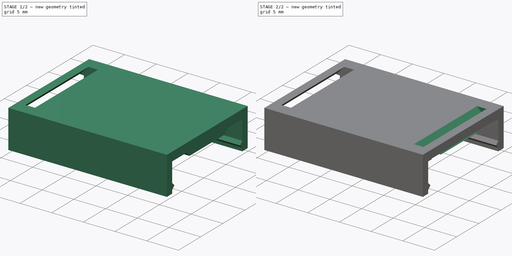
[diagram: build sequence overview — one tinted view per stage of 2, left to right]
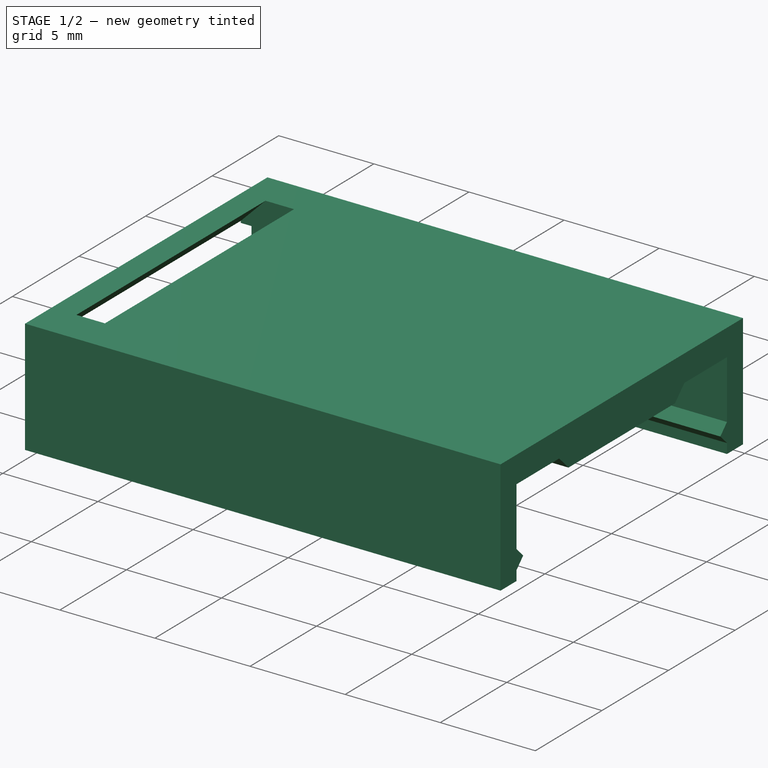
[diagram: stage 1 of 2 — iso view after this stage's code; geometry added in this stage tinted green]
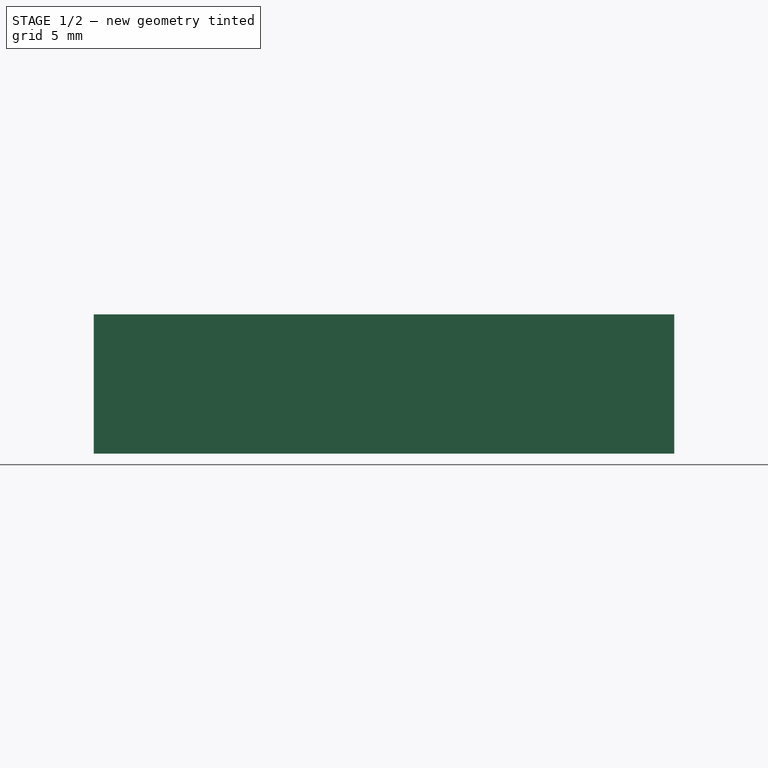
[diagram: stage 1 of 2 — front view after this stage's code; geometry added in this stage tinted green]
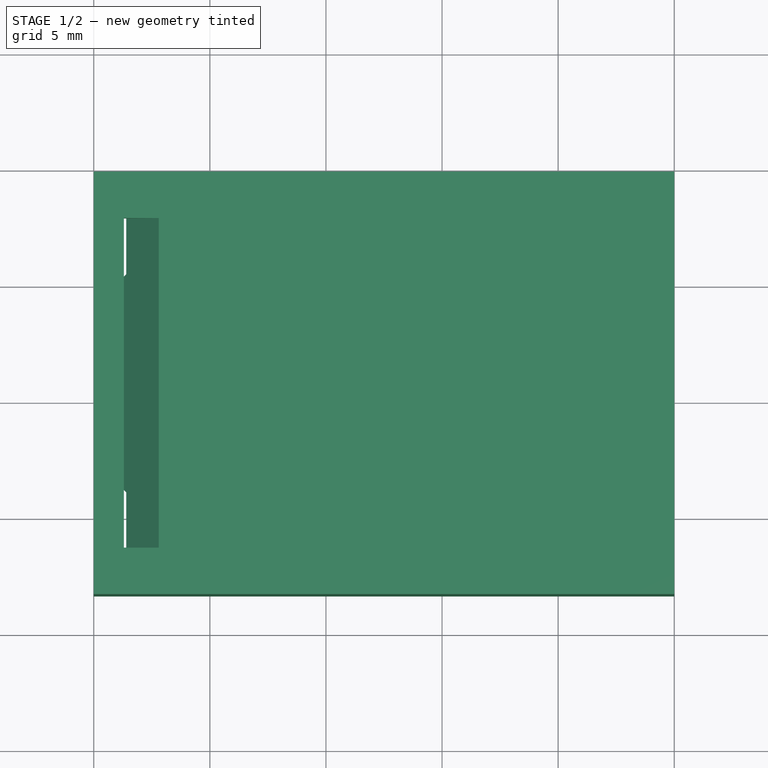
[diagram: stage 1 of 2 — top view after this stage's code; geometry added in this stage tinted green]
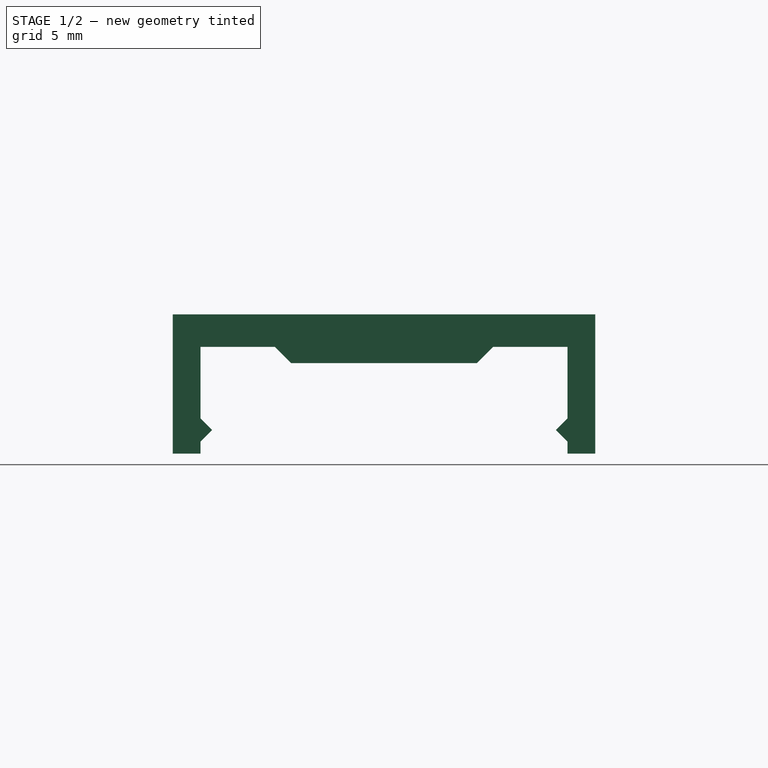
[diagram: stage 1 of 2 — right view after this stage's code; geometry added in this stage tinted green]
FCSTD DOCUMENT  (FreeCAD 1.0R39109 (Git))
Label: Menlu_peel-cap_12mm
License: All rights reserved
LicenseURL: https://en.wikipedia.org/wiki/All_rights_reserved
objects: Sketcher::SketchObject×3, PartDesign::Pocket×2, PartDesign::Pad×1, PartDesign::Body×1
note: 16 computed .brp shape members not serialized (recipe doc carries the construction recipe); baked Part::Feature solids carry a one-line shape summary decoded from their .brp

FEATURE [Sketcher::SketchObject] Sketch
  ArcFitTolerance = 1e-06
  AttachmentSupport = -> [YZ_Plane]
  FullyConstrained = true
  MakeInternals = false
  MapMode = 5
  Placement = pos=(0,0,0) rot=(0.57735,0.57735,0.57735;2.0944rad)
  expr: Constraints[29] = .Constraints.cap_height
  expr: Constraints[31] = .Constraints.wall_width
  expr: Constraints[33] = .Constraints.point_len
  expr: Constraints[34] = .Constraints.point_len
  expr: Constraints[35] = .Constraints.point_len
  expr: Constraints[39] = .Constraints.point_len
  expr: Constraints[40] = .Constraints.point_len
  expr: Constraints[46] = .Constraints.top_gap
  expr: Constraints[48] = .Constraints.pusher_slope
  expr: Constraints[49] = .Constraints.pusher_slope
  sketch-geometry (18):
    g0: LineSegment StartX=1.67112 StartY=4.43155 StartZ=0 EndX=1.67112 EndY=10.4316 EndZ=0
    g1: LineSegment StartX=1.67112 StartY=10.4316 StartZ=0 EndX=19.8711 EndY=10.4316 EndZ=0
    g2: LineSegment StartX=19.8711 StartY=10.4316 StartZ=0 EndX=19.8711 EndY=4.43155 EndZ=0
    g3: LineSegment StartX=19.8711 StartY=4.43155 StartZ=0 EndX=18.6711 EndY=4.43155 EndZ=0
    g4: LineSegment StartX=18.6711 StartY=4.43155 StartZ=0 EndX=18.6711 EndY=4.95155 EndZ=0
    g5: LineSegment StartX=18.6711 StartY=4.95155 StartZ=0 EndX=18.1711 EndY=5.45155 EndZ=0
    g6: LineSegment StartX=18.1711 StartY=5.45155 StartZ=0 EndX=18.6711 EndY=5.95155 EndZ=0
    g7: LineSegment StartX=18.6711 StartY=5.95155 StartZ=0 EndX=18.6711 EndY=9.03155 EndZ=0
    g8: LineSegment StartX=18.6711 StartY=9.03155 StartZ=0 EndX=15.4711 EndY=9.03155 EndZ=0
    g9: LineSegment StartX=15.4711 StartY=9.03155 StartZ=0 EndX=14.7711 EndY=8.33155 EndZ=0
    g10: LineSegment StartX=14.7711 StartY=8.33155 StartZ=0 EndX=6.77112 EndY=8.33155 EndZ=0
    g11: LineSegment StartX=6.77112 StartY=8.33155 StartZ=0 EndX=6.07112 EndY=9.03155 EndZ=0
    g12: LineSegment StartX=6.07112 StartY=9.03155 StartZ=0 EndX=2.87112 EndY=9.03155 EndZ=0
    g13: LineSegment StartX=2.87112 StartY=9.03155 StartZ=0 EndX=2.87112 EndY=5.95155 EndZ=0
    g14: LineSegment StartX=2.87112 StartY=5.95155 StartZ=0 EndX=3.37112 EndY=5.45155 EndZ=0
    g15: LineSegment StartX=3.37112 StartY=5.45155 StartZ=0 EndX=2.87112 EndY=4.95155 EndZ=0
    g16: LineSegment StartX=2.87112 StartY=4.95155 StartZ=0 EndX=2.87112 EndY=4.43155 EndZ=0
    g17: LineSegment StartX=2.87112 StartY=4.43155 StartZ=0 EndX=1.67112 EndY=4.43155 EndZ=0
  constraints (51):
    c: Vertical(g0)
    c: Coincident(g0,g1)
    c: Horizontal(g1)
    c: Coincident(g1,g2)
    c: Vertical(g2)
    c: Coincident(g2,g3)
    c: Horizontal(g3)
    c: Coincident(g3,g4)
    c: Vertical(g4)
    c: Coincident(g4,g5)
    c: Coincident(g5,g6)
    c: Coincident(g6,g7)
    c: Coincident(g7,g8)
    c: Horizontal(g8)
    c: Coincident(g8,g9)
    c: Coincident(g9,g10)
    c: Horizontal(g10)
    c: Coincident(g10,g11)
    c: Coincident(g11,g12)
    c: Coincident(g12,g13)
    c: Vertical(g13)
    c: Coincident(g13,g14)
    c: Coincident(g14,g15)
    c: Coincident(g15,g16)
    c: Coincident(g16,g17)
    c: Coincident(g17,g0)
    c: DistanceY(g0,g0) = 6  'cap_height'
    c: Horizontal(g17)
    c: DistanceX(g1,g1) = 18.2
    c: DistanceY(g2,g2) = 6
    c: DistanceX(g17,g17) = 1.2  'wall_width'
    c: DistanceX(g3,g3) = 1.2
    c: DistanceX(g15,g14) = 0.5  'point_len'
    c: DistanceY(g15,g14) = 0.5
    c: DistanceX(g5,g4) = 0.5
    c: DistanceY(g4,g5) = 0.5
    c: Tangent(g16,g13)
    c: Tangent(g4,g7)
    c: Tangent(g8,g12)
    c: DistanceY(g14,g13) = 0.5
    c: DistanceY(g5,g6) = 0.5
    c: Distance(g14,g12) = 3.58  'point_distance'
    c: Horizontal(g14,g5)
    c: Distance(g1,g12) = 1.4
    c: Block(g0)
    c: DistanceX(g12,g12) = 3.2  'top_gap'
    c: DistanceX(g8,g8) = 3.2
    c: DistanceX(g11,g10) = 0.7  'pusher_slope'
    c: DistanceY(g10,g11) = 0.7
    c: DistanceX(g9,g8) = 0.7
    c: DistanceY(g16,g14) = 1.02
FEATURE [PartDesign::Pad] Pad
  Direction = (1,0,0)
  Length = 25
  Length2 = 10
  Placement = pos=(0,0,0) rot=(1,1,1;2.0944rad)
  Profile = -> Sketch
  ReferenceAxis = -> Sketch [N_Axis]
  Refine = true
  Suppressed = false
  Type = 0
FEATURE [Sketcher::SketchObject] Sketch001
  ArcFitTolerance = 1e-06
  AttachmentSupport = -> [Pad]
  ExternalGeometry = -> [Pad]
  FullyConstrained = true
  MakeInternals = false
  MapMode = 5
  Placement = pos=(-1.2e-15,3.5e-15,10.4316) rot=(0,0,-1;1.5708rad)
  expr: Constraints[9] = .Constraints.edge_y_dist
  sketch-geometry (4):
    g0: LineSegment StartX=-17.8711 StartY=2.8 StartZ=0 EndX=-17.8711 EndY=1.3 EndZ=0
    g1: LineSegment StartX=-17.8711 StartY=1.3 StartZ=0 EndX=-3.67112 EndY=1.3 EndZ=0
    g2: LineSegment StartX=-3.67112 StartY=1.3 StartZ=0 EndX=-3.67112 EndY=2.8 EndZ=0
    g3: LineSegment StartX=-3.67112 StartY=2.8 StartZ=0 EndX=-17.8711 EndY=2.8 EndZ=0
  constraints (12):
    c: Coincident(g0,g1)
    c: Coincident(g1,g2)
    c: Coincident(g2,g3)
    c: Coincident(g3,g0)
    c: Vertical(g0)
    c: Vertical(g2)
    c: Horizontal(g1)
    c: Horizontal(g3)
    c: DistanceX(g-4,g0) = 2  'edge_y_dist'
    c: DistanceX(g1,g-4) = 2
    c: Distance(g-4,g1) = 1.3  'edge_x_dist'
    c: Distance(g0,g0) = 1.5  'hole_width'
FEATURE [PartDesign::Pocket] Pocket
  BaseFeature = -> Pad
  Direction = (-1,0,-1)
  Length = 5
  Length2 = 5
  Placement = pos=(0,0,0) rot=(1,1,1;2.0944rad)
  Profile = -> Sketch001
  ReferenceAxis = -> Sketch001 [N_Axis]
  Refine = true
  Suppressed = false
  Type = 0
  UseCustomVector = true
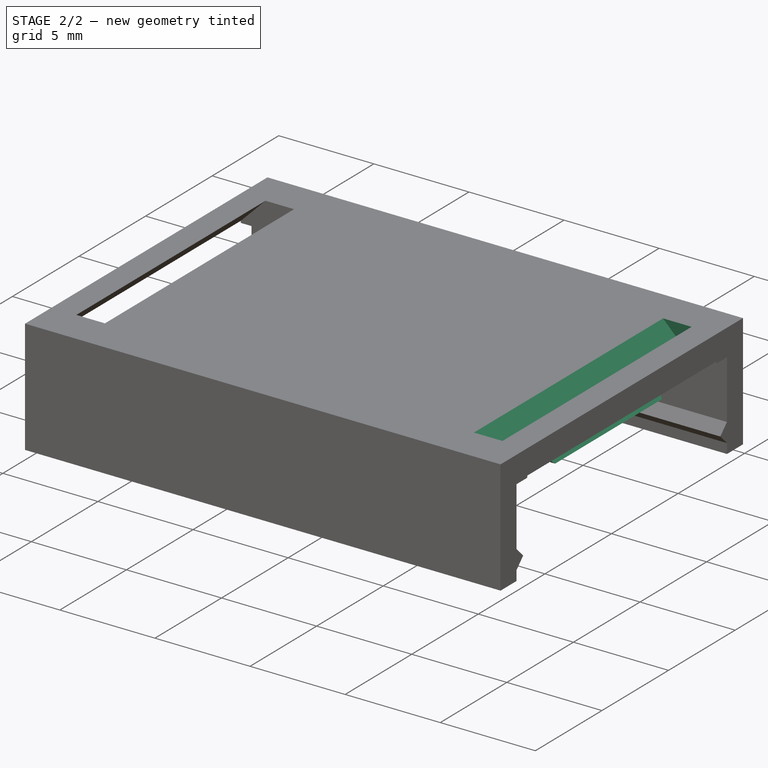
[diagram: stage 2 of 2 — iso view after this stage's code; geometry added in this stage tinted green]
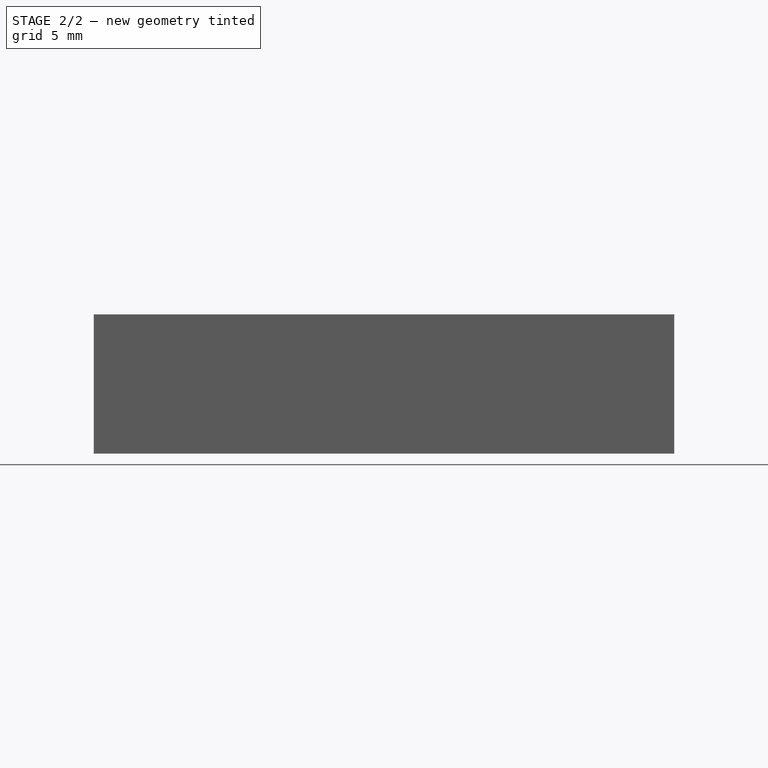
[diagram: stage 2 of 2 — front view after this stage's code; geometry added in this stage tinted green]
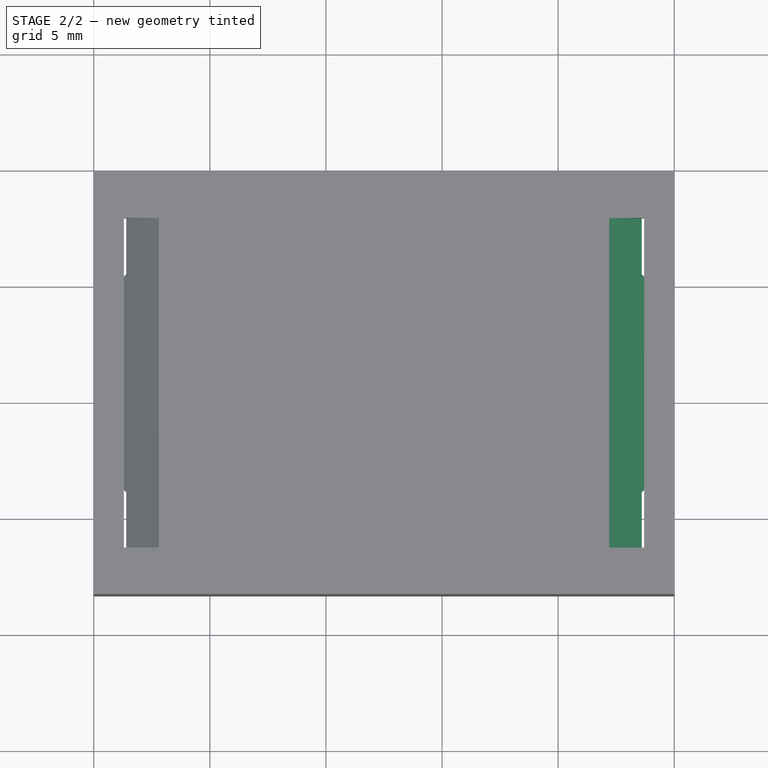
[diagram: stage 2 of 2 — top view after this stage's code; geometry added in this stage tinted green]
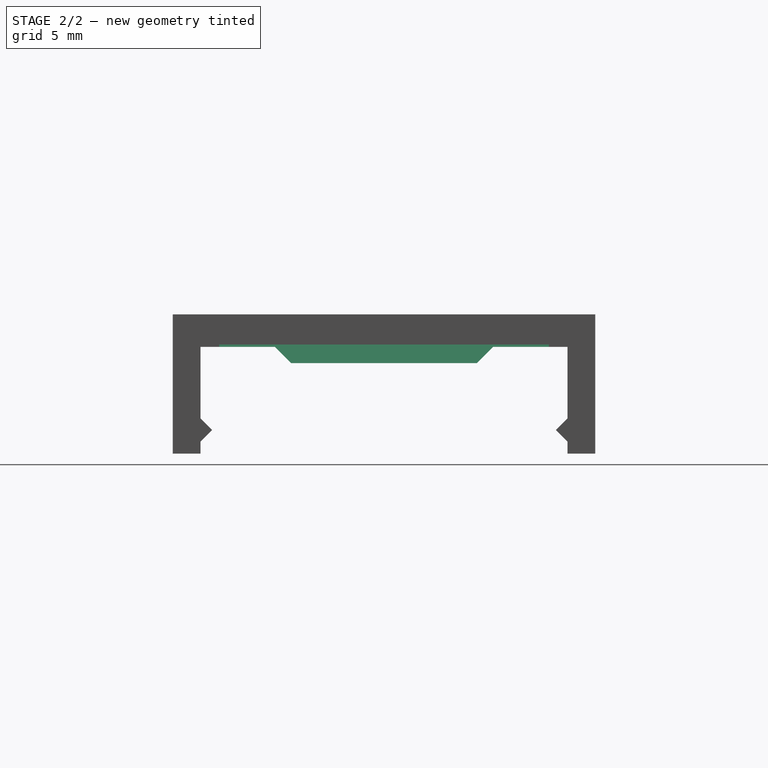
[diagram: stage 2 of 2 — right view after this stage's code; geometry added in this stage tinted green]
FEATURE [Sketcher::SketchObject] Sketch002
  ArcFitTolerance = 1e-06
  AttachmentSupport = -> [Pocket]
  ExternalGeometry = -> [Pocket]
  FullyConstrained = true
  MakeInternals = false
  MapMode = 5
  Placement = pos=(-4.6e-15,4.6e-15,10.4316) rot=(0,0,-1;1.5708rad)
  expr: Constraints[10] = <<Sketch001>>.Constraints.edge_x_dist
  expr: Constraints[11] = <<Sketch001>>.Constraints.hole_width
  expr: Constraints[8] = <<Sketch001>>.Constraints.edge_y_dist
  expr: Constraints[9] = <<Sketch001>>.Constraints.edge_y_dist
  sketch-geometry (4):
    g0: LineSegment StartX=-17.8711 StartY=23.7 StartZ=0 EndX=-17.8711 EndY=22.2 EndZ=0
    g1: LineSegment StartX=-17.8711 StartY=22.2 StartZ=0 EndX=-3.67112 EndY=22.2 EndZ=0
    g2: LineSegment StartX=-3.67112 StartY=22.2 StartZ=0 EndX=-3.67112 EndY=23.7 EndZ=0
    g3: LineSegment StartX=-3.67112 StartY=23.7 StartZ=0 EndX=-17.8711 EndY=23.7 EndZ=0
  constraints (12):
    c: Coincident(g0,g1)
    c: Coincident(g1,g2)
    c: Coincident(g2,g3)
    c: Coincident(g3,g0)
    c: Vertical(g0)
    c: Vertical(g2)
    c: Horizontal(g1)
    c: Horizontal(g3)
    c: Distance(g-3,g0) = 2
    c: Distance(g-5,g2) = 2
    c: Distance(g-4,g3) = 1.3
    c: Distance(g2,g2) = 1.5
FEATURE [PartDesign::Pocket] Pocket001
  BaseFeature = -> Pocket
  Direction = (1,0,-1)
  Length = 5
  Length2 = 5
  Placement = pos=(0,0,0) rot=(1,1,1;2.0944rad)
  Profile = -> Sketch002
  ReferenceAxis = -> Sketch002 [N_Axis]
  Refine = true
  Suppressed = false
  Type = 0
  UseCustomVector = true
FEATURE [PartDesign::Body] Body
  AllowCompound = false
  Group = -> [Sketch,Pad,Sketch001,Pocket,Sketch002,Pocket001]
  Origin = -> Origin
  Tip = -> Pocket001
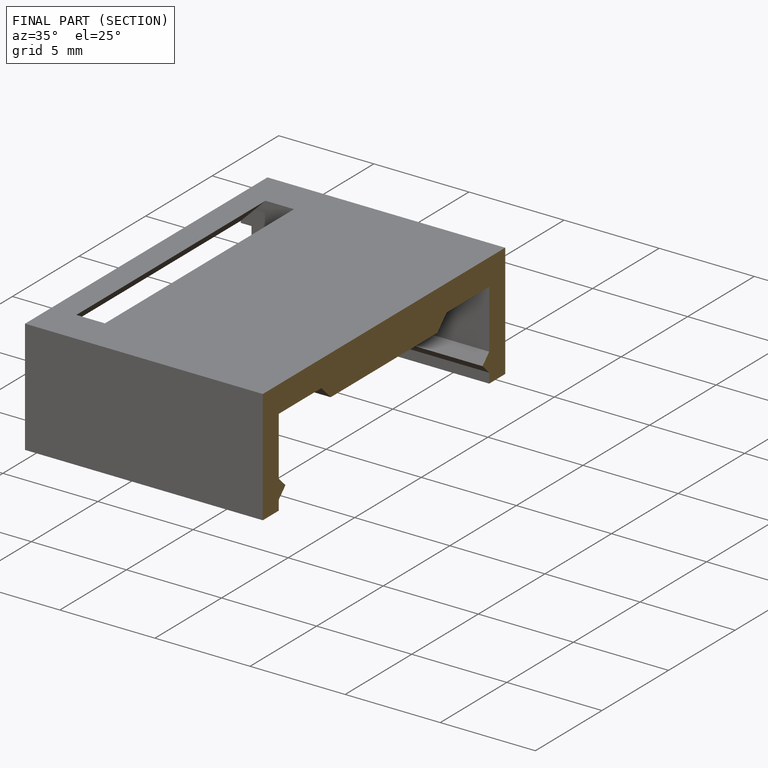
[diagram: finished part — half-section view (interior)]
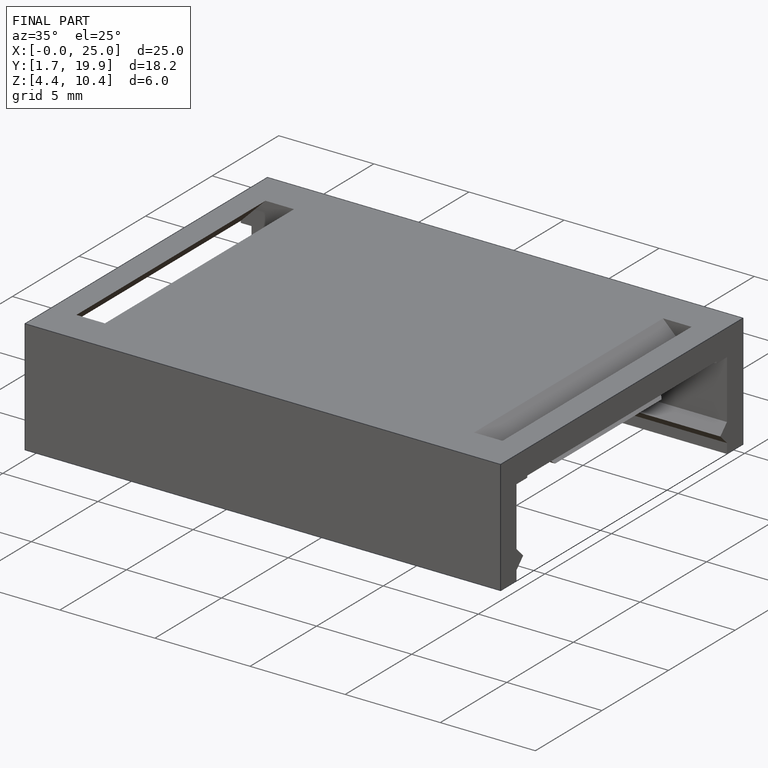
[diagram: finished part — iso view with bounding-box wireframe]
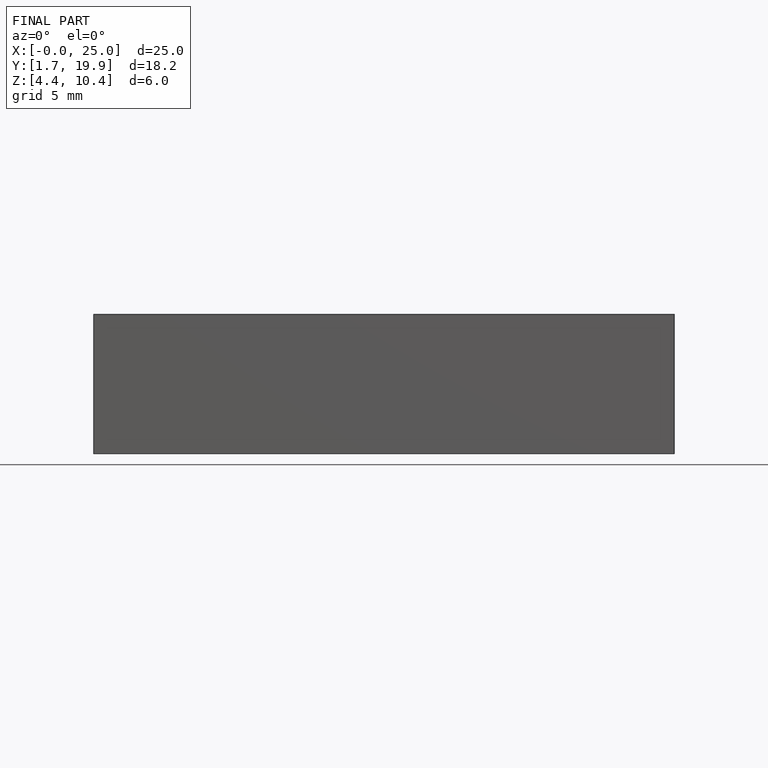
[diagram: finished part — front view with bounding-box wireframe]
